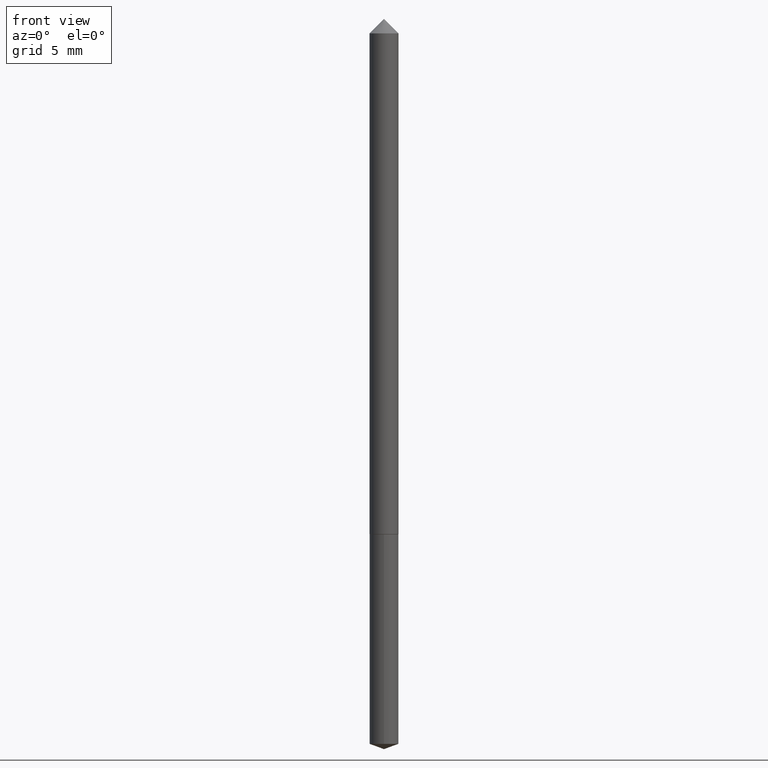
[diagram: clean part render]
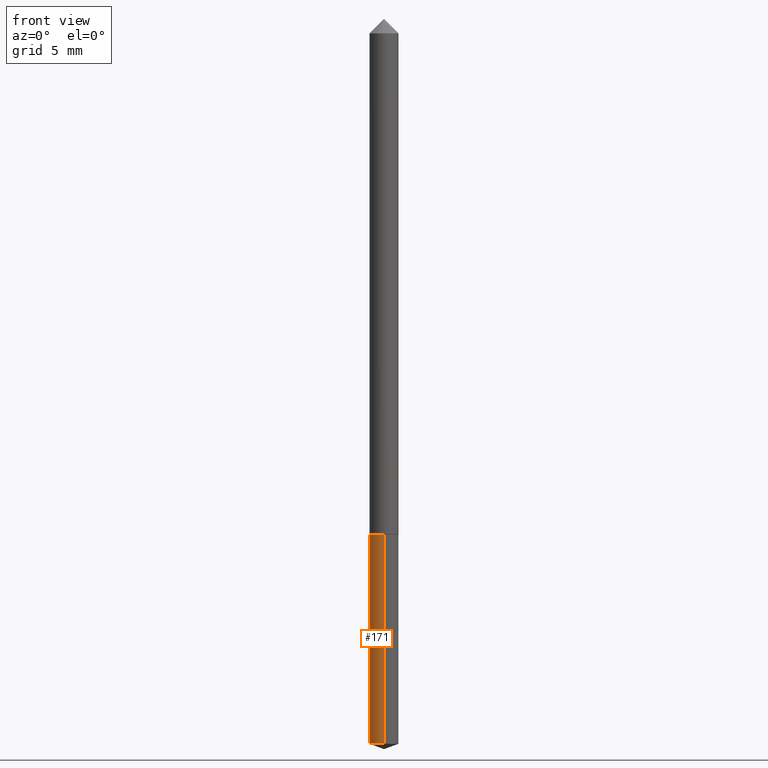
[diagram: same view with one face highlighted and labeled with its STEP entity id]
A machine part, front view. The second image highlights one B-rep face of the part: STEP entity #171.
In plain terms, the highlighted cylindrical surface (edge-blend (fillet) strip) has radius 0.7556 mm, axis along (-0, 0, 1).
Its self-contained STEP definition (entity closure, byte-faithful):
#17 = ORIENTED_EDGE ( 'NONE', *, *, #119, .F. ) ;
#37 = AXIS2_PLACEMENT_3D ( 'NONE', #346, #73, #253 ) ;
#52 = CARTESIAN_POINT ( 'NONE',  ( 3.641726542818809311E-29, -5.199411338101806967E-15, -1.489171885530580886 ) ) ;
#58 = CYLINDRICAL_SURFACE ( 'NONE', #149, 0.02974999999999999867 ) ;
#73 = DIRECTION ( 'NONE',  ( -2.445476136676092490E-29, 3.491470841162871062E-15, 1.000000000000000000 ) ) ;
#86 = EDGE_CURVE ( 'NONE', #320, #294, #284, .T. ) ;
#110 = CIRCLE ( 'NONE', #301, 0.02974999999999999867 ) ;
#116 = CARTESIAN_POINT ( 'NONE',  ( 2.113864638886661574E-16, 0.02974999999999479450, -1.489171885530580886 ) ) ;
#118 = ORIENTED_EDGE ( 'NONE', *, *, #86, .F. ) ;
#119 = EDGE_CURVE ( 'NONE', #137, #320, #298, .T. ) ;
#130 = EDGE_LOOP ( 'NONE', ( #17, #359, #206, #118 ) ) ;
#137 = VERTEX_POINT ( 'NONE', #116 ) ;
#149 = AXIS2_PLACEMENT_3D ( 'NONE', #241, #218, #334 ) ;
#151 = CARTESIAN_POINT ( 'NONE',  ( -2.077431396611299340E-16, -0.02975000000000519590, -1.489171885530580886 ) ) ;
#153 = DIRECTION ( 'NONE',  ( -2.445476136676092490E-29, 3.491470841162871062E-15, 1.000000000000000000 ) ) ;
#171 = ADVANCED_FACE ( 'NONE', ( #289 ), #58, .T. ) ;
#175 = DIRECTION ( 'NONE',  ( -2.445476136676092490E-29, 3.491470841162871062E-15, 1.000000000000000000 ) ) ;
#187 = CARTESIAN_POINT ( 'NONE',  ( 2.113864638886662806E-16, 0.02974999999999630024, -1.059500000000000330 ) ) ;
#189 = EDGE_CURVE ( 'NONE', #352, #294, #192, .T. ) ;
#192 = LINE ( 'NONE', #282, #214 ) ;
#206 = ORIENTED_EDGE ( 'NONE', *, *, #189, .T. ) ;
#211 = VECTOR ( 'NONE', #175, 39.37007874015748143 ) ;
#214 = VECTOR ( 'NONE', #283, 39.37007874015748143 ) ;
#218 = DIRECTION ( 'NONE',  ( -2.445476136676092490E-29, 3.491470841162871062E-15, 1.000000000000000000 ) ) ;
#241 = CARTESIAN_POINT ( 'NONE',  ( 2.590974200153152507E-29, -3.699224478504313579E-15, -1.059500000000000108 ) ) ;
#253 = DIRECTION ( 'NONE',  ( -6.982962677686265922E-15, -1.000000000000000000, 4.591341165822291216E-15 ) ) ;
#262 = DIRECTION ( 'NONE',  ( -6.982962677686265922E-15, -1.000000000000000000, 0.000000000000000000 ) ) ;
#265 = EDGE_CURVE ( 'NONE', #137, #352, #110, .T. ) ;
#282 = CARTESIAN_POINT ( 'NONE',  ( -2.077431396611405097E-16, -0.02975000000000370057, -1.059499999999999886 ) ) ;
#283 = DIRECTION ( 'NONE',  ( -2.445476136676092490E-29, 3.491470841162871062E-15, 1.000000000000000000 ) ) ;
#284 = CIRCLE ( 'NONE', #37, 0.02974999999999999867 ) ;
#289 = FACE_OUTER_BOUND ( 'NONE', #130, .T. ) ;
#294 = VERTEX_POINT ( 'NONE', #314 ) ;
#298 = LINE ( 'NONE', #357, #211 ) ;
#301 = AXIS2_PLACEMENT_3D ( 'NONE', #52, #153, #262 ) ;
#314 = CARTESIAN_POINT ( 'NONE',  ( -2.077431396611405097E-16, -0.02975000000000370057, -1.059499999999999886 ) ) ;
#320 = VERTEX_POINT ( 'NONE', #187 ) ;
#334 = DIRECTION ( 'NONE',  ( -6.982962677686265922E-15, -1.000000000000000000, 4.591341165822291216E-15 ) ) ;
#346 = CARTESIAN_POINT ( 'NONE',  ( 2.590974200153152507E-29, -3.699224478504313579E-15, -1.059500000000000108 ) ) ;
#352 = VERTEX_POINT ( 'NONE', #151 ) ;
#357 = CARTESIAN_POINT ( 'NONE',  ( 2.113864638886556803E-16, 0.02974999999999630024, -1.059500000000000330 ) ) ;
#359 = ORIENTED_EDGE ( 'NONE', *, *, #265, .T. ) ;